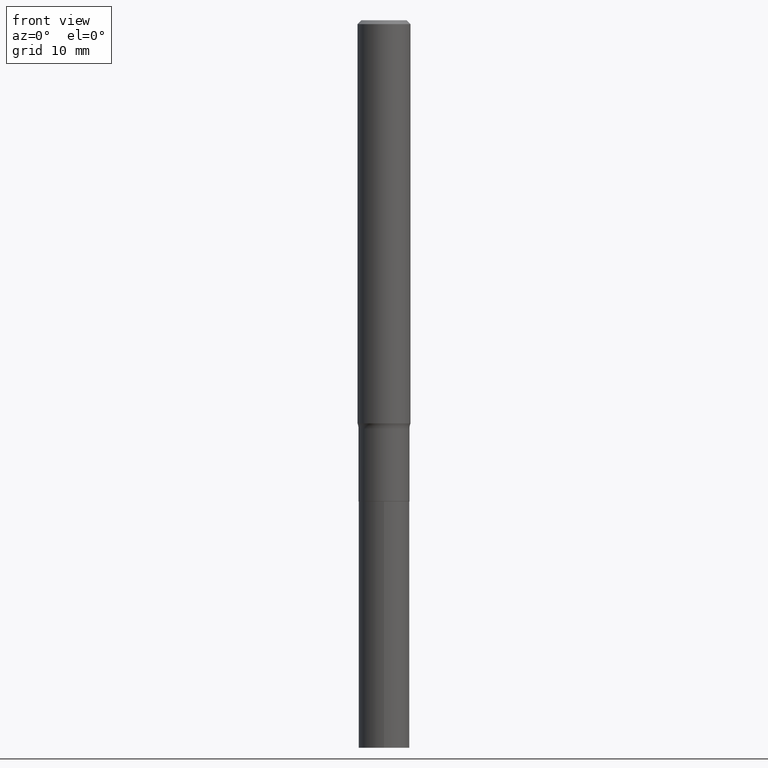
[diagram: clean part render]
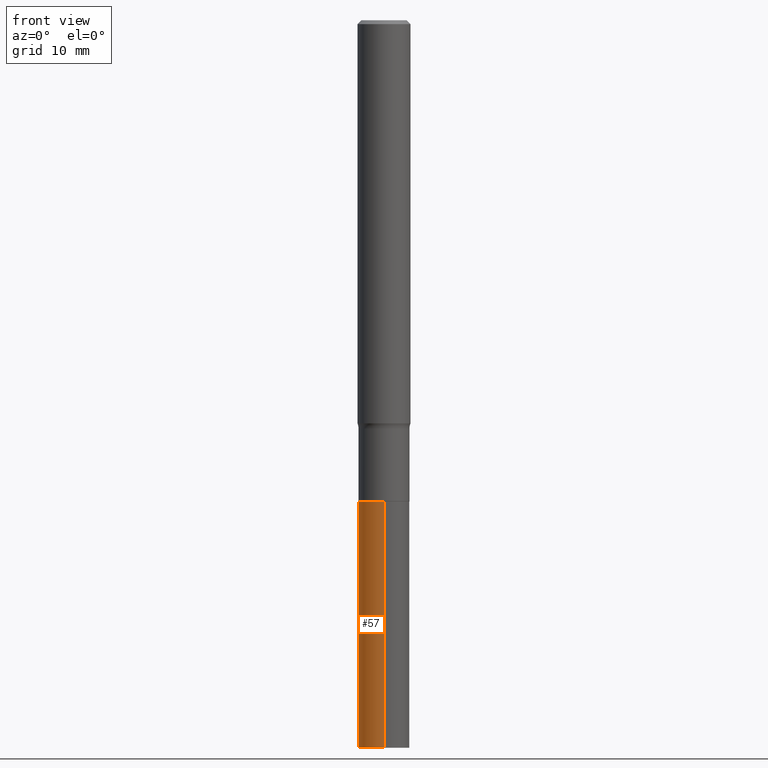
[diagram: same view with one face highlighted and labeled with its STEP entity id]
A machine part, front view. The second image highlights one B-rep face of the part: STEP entity #57.
In plain terms, the highlighted cylindrical surface (edge-blend (fillet) strip) has radius 3.8494 mm, axis along (-0, 0, 1).
Its self-contained STEP definition (entity closure, byte-faithful):
#2 = DIRECTION ( 'NONE',  ( -2.445421097204986906E-29, 3.491549660818146744E-15, 1.000000000000000000 ) ) ;
#13 = LINE ( 'NONE', #228, #144 ) ;
#22 = ORIENTED_EDGE ( 'NONE', *, *, #362, .T. ) ;
#35 = DIRECTION ( 'NONE',  ( -2.445421097204986906E-29, 3.491549660818146744E-15, 1.000000000000000000 ) ) ;
#57 = ADVANCED_FACE ( 'NONE', ( #113 ), #183, .T. ) ;
#64 = EDGE_CURVE ( 'NONE', #212, #283, #402, .T. ) ;
#71 = CARTESIAN_POINT ( 'NONE',  ( 7.005534489078562059E-29, -1.000204659138396250E-14, -2.864700000000000912 ) ) ;
#76 = CARTESIAN_POINT ( 'NONE',  ( -1.058267993803283515E-15, -0.1515500000000099823, -2.864700000000000024 ) ) ;
#100 = VERTEX_POINT ( 'NONE', #244 ) ;
#113 = FACE_OUTER_BOUND ( 'NONE', #352, .T. ) ;
#117 = CIRCLE ( 'NONE', #177, 0.1515499999999999903 ) ;
#122 = AXIS2_PLACEMENT_3D ( 'NONE', #323, #292, #224 ) ;
#144 = VECTOR ( 'NONE', #267, 39.37007874015748143 ) ;
#170 = ORIENTED_EDGE ( 'NONE', *, *, #356, .F. ) ;
#177 = AXIS2_PLACEMENT_3D ( 'NONE', #320, #2, #287 ) ;
#180 = DIRECTION ( 'NONE',  ( -6.982962677686265922E-15, -1.000000000000000000, 3.605210153301568306E-15 ) ) ;
#183 = CYLINDRICAL_SURFACE ( 'NONE', #122, 0.1515499999999999903 ) ;
#212 = VERTEX_POINT ( 'NONE', #308 ) ;
#224 = DIRECTION ( 'NONE',  ( -6.982962677686265922E-15, -1.000000000000000000, 3.605210153301568306E-15 ) ) ;
#226 = AXIS2_PLACEMENT_3D ( 'NONE', #71, #35, #180 ) ;
#228 = CARTESIAN_POINT ( 'NONE',  ( 1.076827516044501577E-15, 0.1515499999999899705, -2.864700000000001356 ) ) ;
#243 = ORIENTED_EDGE ( 'NONE', *, *, #453, .F. ) ;
#244 = CARTESIAN_POINT ( 'NONE',  ( 1.076827516044519523E-15, 0.1515499999999848635, -4.330700000000001104 ) ) ;
#261 = VECTOR ( 'NONE', #363, 39.37007874015748143 ) ;
#267 = DIRECTION ( 'NONE',  ( -2.445421097204986906E-29, 3.491549660818146744E-15, 1.000000000000000000 ) ) ;
#283 = VERTEX_POINT ( 'NONE', #431 ) ;
#287 = DIRECTION ( 'NONE',  ( -6.982962677686265922E-15, -1.000000000000000000, 3.605210153301568306E-15 ) ) ;
#292 = DIRECTION ( 'NONE',  ( -2.445421097204986906E-29, 3.491549660818146744E-15, 1.000000000000000000 ) ) ;
#308 = CARTESIAN_POINT ( 'NONE',  ( -1.058267993803247621E-15, -0.1515500000000151171, -4.330700000000000216 ) ) ;
#315 = CIRCLE ( 'NONE', #226, 0.1515499999999999903 ) ;
#320 = CARTESIAN_POINT ( 'NONE',  ( 1.059052181758107427E-28, -1.512065839414336504E-14, -4.330700000000001104 ) ) ;
#323 = CARTESIAN_POINT ( 'NONE',  ( 7.005534489078562059E-29, -1.000204659138396250E-14, -2.864700000000000912 ) ) ;
#349 = ORIENTED_EDGE ( 'NONE', *, *, #64, .T. ) ;
#352 = EDGE_LOOP ( 'NONE', ( #243, #22, #349, #170 ) ) ;
#356 = EDGE_CURVE ( 'NONE', #468, #283, #315, .T. ) ;
#362 = EDGE_CURVE ( 'NONE', #100, #212, #117, .T. ) ;
#363 = DIRECTION ( 'NONE',  ( -2.445421097204986906E-29, 3.491549660818146744E-15, 1.000000000000000000 ) ) ;
#402 = LINE ( 'NONE', #76, #261 ) ;
#431 = CARTESIAN_POINT ( 'NONE',  ( -1.058267993803283515E-15, -0.1515500000000099823, -2.864700000000000024 ) ) ;
#441 = CARTESIAN_POINT ( 'NONE',  ( 1.076827516044537667E-15, 0.1515499999999899705, -2.864700000000001356 ) ) ;
#453 = EDGE_CURVE ( 'NONE', #100, #468, #13, .T. ) ;
#468 = VERTEX_POINT ( 'NONE', #441 ) ;